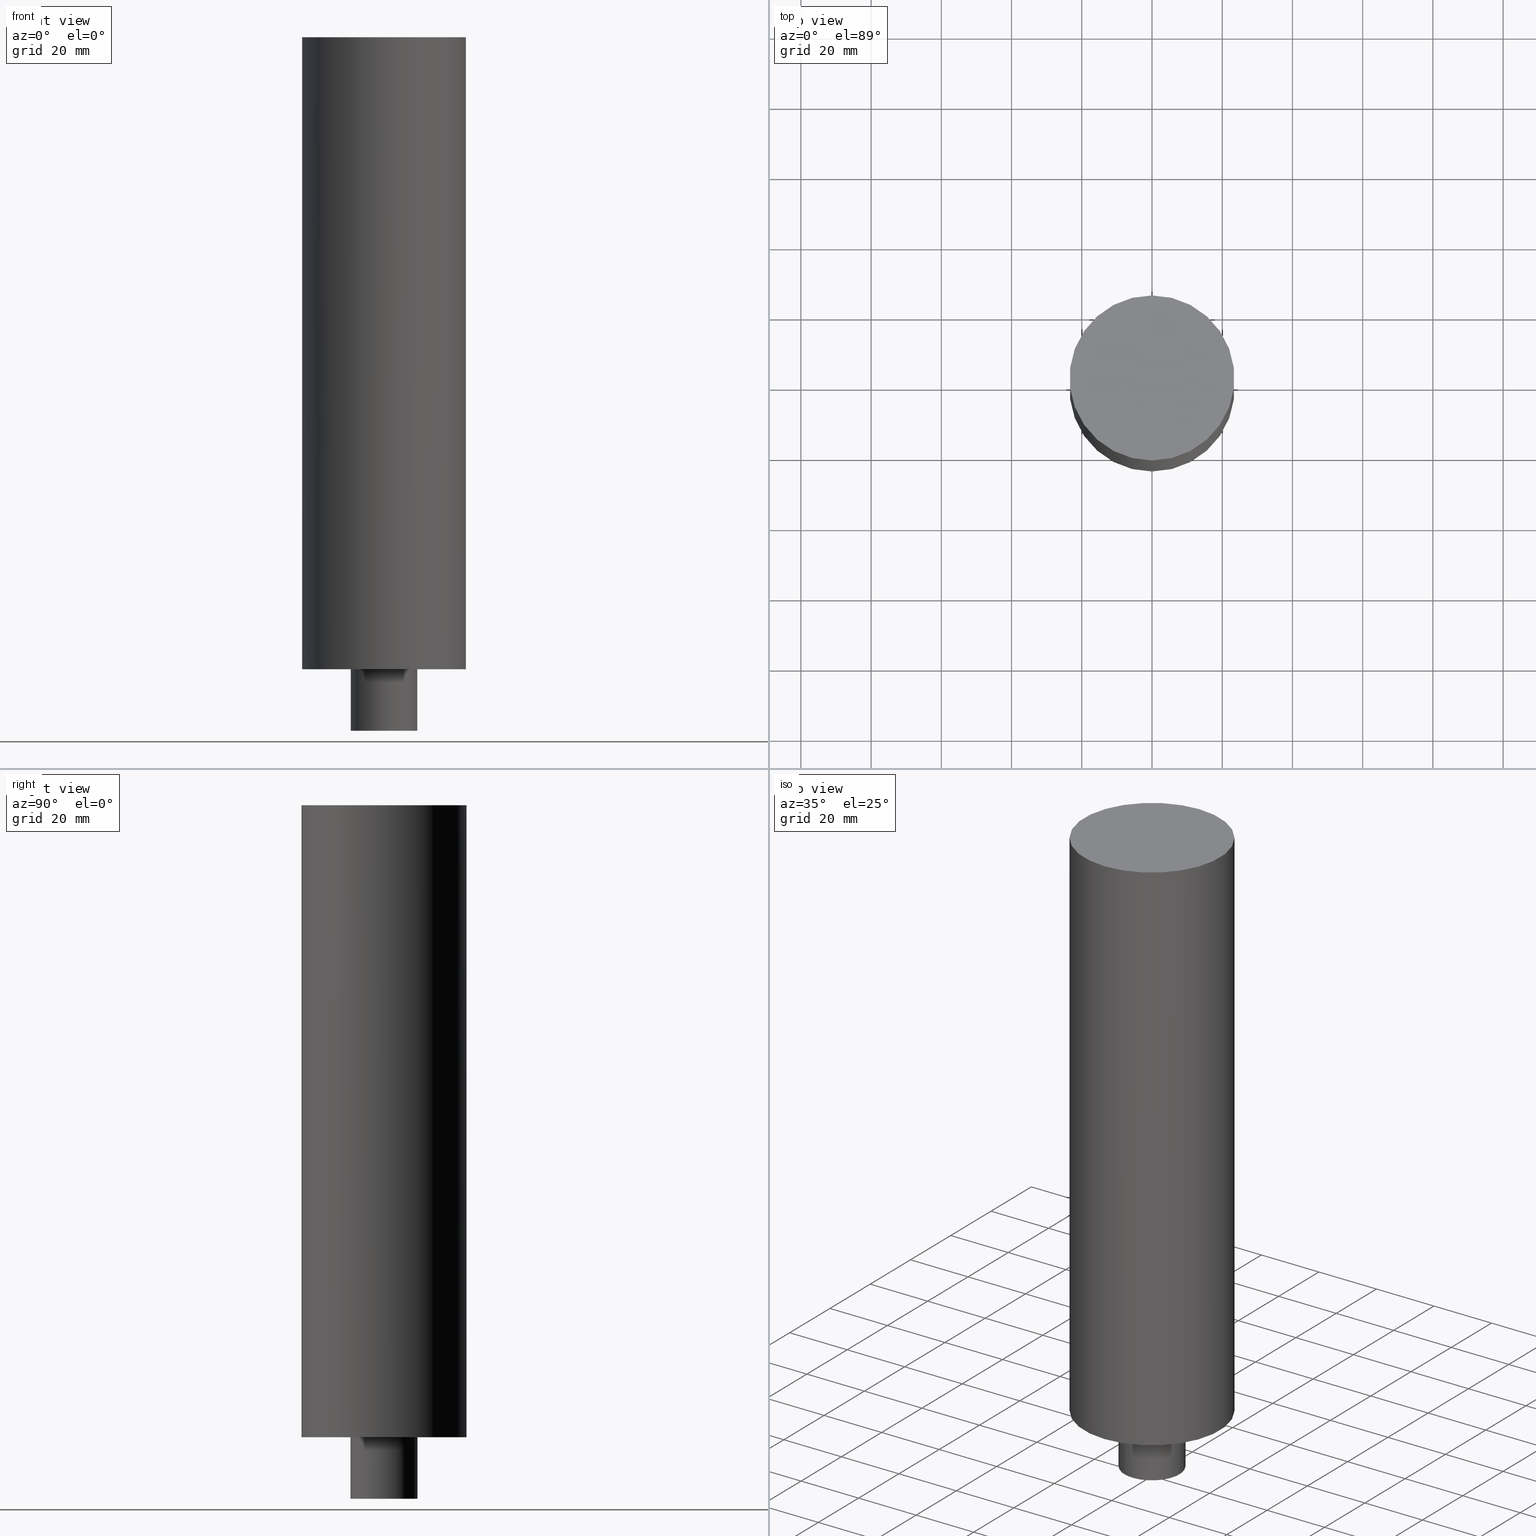
[diagram: canonical four-view strip — front | top / right | iso, engineering-drawing reading convention]
A machine part, canonical four-view strip (front | top / right | iso — engineering-drawing reading convention). The complete STEP part file that produces these views, byte-faithful:
ISO-10303-21;
HEADER;
FILE_DESCRIPTION((''),'1');
FILE_NAME('V:/90_\X2\53D65F9730C730FC30BF\X0\/00_\X2\6DE18DEF30C730FC30BF\X0\/ALL/BCV-BKUS\X2\FF76FF80FF9BFF78FF9E752852A05DE556F3\X0\201801/BCV50-SDF/SDF36-SMC.750DP-47-180.stp','2018-02-01T01:16:16',(''),(''),'Spatial Interop R21 SP3','Kubotek KeyCreator 2011 V10.0.2 (22737)',' ');
FILE_SCHEMA(('automotive_design'));
ENDSEC;
DATA;
#1=MECHANICAL_DESIGN_GEOMETRIC_PRESENTATION_REPRESENTATION(' ',(#10,#11,#12,#13,#14,#15,#16,#17,#18,#19),#6);
#2=PRODUCT_DEFINITION_CONTEXT('',#20,'design');
#3=APPLICATION_PROTOCOL_DEFINITION('INTERNATIONAL STANDARD','automotive_design',1994,#20);
#4=PRODUCT_CATEGORY_RELATIONSHIP('NONE','NONE',#21,#22);
#5=SHAPE_DEFINITION_REPRESENTATION(#23,#24);
#6= (GEOMETRIC_REPRESENTATION_CONTEXT(3)GLOBAL_UNCERTAINTY_ASSIGNED_CONTEXT((#27))GLOBAL_UNIT_ASSIGNED_CONTEXT((#29,#30,#31))REPRESENTATION_CONTEXT('NONE','WORKSPACE'));
#10=STYLED_ITEM('',(#33),#34);
#11=STYLED_ITEM('',(#35),#36);
#12=STYLED_ITEM('',(#37,#38),#39);
#13=STYLED_ITEM('',(#40),#41);
#14=STYLED_ITEM('',(#42,#43),#44);
#15=STYLED_ITEM('',(#45),#46);
#16=STYLED_ITEM('',(#47,#48),#49);
#17=STYLED_ITEM('',(#50,#51),#52);
#18=STYLED_ITEM('',(#53,#54),#55);
#19=STYLED_ITEM('',(#56,#57),#58);
#20=APPLICATION_CONTEXT(' ');
#21=PRODUCT_CATEGORY('part','NONE');
#22=PRODUCT_RELATED_PRODUCT_CATEGORY('detail',' ',(#59));
#23=PRODUCT_DEFINITION_SHAPE('NONE','NONE',#60);
#24=ADVANCED_BREP_SHAPE_REPRESENTATION('Unnamed[1]',(#52,#61),#6);
#27=UNCERTAINTY_MEASURE_WITH_UNIT(LENGTH_MEASURE(1.0E-006),#29,'','');
#29= (CONVERSION_BASED_UNIT('MILLIMETRE',#64)LENGTH_UNIT()NAMED_UNIT(#67));
#30= (NAMED_UNIT(#69)PLANE_ANGLE_UNIT()SI_UNIT($,.RADIAN.));
#31= (NAMED_UNIT(#69)SOLID_ANGLE_UNIT()SI_UNIT($,.STERADIAN.));
#33=PRESENTATION_STYLE_ASSIGNMENT((#75));
#34=EDGE_CURVE('Unnamed[1]',#76,#76,#77,.T.);
#35=PRESENTATION_STYLE_ASSIGNMENT((#78));
#36=EDGE_CURVE('Unnamed[1]',#79,#79,#80,.T.);
#37=PRESENTATION_STYLE_ASSIGNMENT((#81));
#38=PRESENTATION_STYLE_ASSIGNMENT((#82));
#39=ADVANCED_FACE('Unnamed[1]',(#83,#84),#85,.T.);
#40=PRESENTATION_STYLE_ASSIGNMENT((#86));
#41=EDGE_CURVE('Unnamed[1]',#87,#87,#88,.T.);
#42=PRESENTATION_STYLE_ASSIGNMENT((#89));
#43=PRESENTATION_STYLE_ASSIGNMENT((#90));
#44=ADVANCED_FACE('Unnamed[1]',(#91),#92,.T.);
#45=PRESENTATION_STYLE_ASSIGNMENT((#93));
#46=EDGE_CURVE('Unnamed[1]',#94,#94,#95,.T.);
#47=PRESENTATION_STYLE_ASSIGNMENT((#96));
#48=PRESENTATION_STYLE_ASSIGNMENT((#97));
#49=ADVANCED_FACE('Unnamed[1]',(#98,#99),#100,.T.);
#50=PRESENTATION_STYLE_ASSIGNMENT((#101));
#51=PRESENTATION_STYLE_ASSIGNMENT((#102));
#52=MANIFOLD_SOLID_BREP('Unnamed[1]',#103);
#53=PRESENTATION_STYLE_ASSIGNMENT((#104));
#54=PRESENTATION_STYLE_ASSIGNMENT((#105));
#55=ADVANCED_FACE('Unnamed[1]',(#106,#107),#108,.T.);
#56=PRESENTATION_STYLE_ASSIGNMENT((#109));
#57=PRESENTATION_STYLE_ASSIGNMENT((#110));
#58=ADVANCED_FACE('Unnamed[1]',(#111),#112,.T.);
#59=PRODUCT('Unnamed[1]','Unnamed[1]','PART-Unnamed[1]-DESC',(#113));
#60=PRODUCT_DEFINITION('NONE','NONE',#114,#2);
#61=AXIS2_PLACEMENT_3D('',#115,#116,#117);
#64=LENGTH_MEASURE_WITH_UNIT(LENGTH_MEASURE(1.0),#118);
#67=DIMENSIONAL_EXPONENTS(1.0,0.0,0.0,0.0,0.0,0.0,0.0);
#69=DIMENSIONAL_EXPONENTS(0.0,0.0,0.0,0.0,0.0,0.0,0.0);
#75=CURVE_STYLE('',#119,POSITIVE_LENGTH_MEASURE(1000.0),#120);
#76=VERTEX_POINT('',#121);
#77=CIRCLE('',#122,9.525);
#78=CURVE_STYLE('',#123,POSITIVE_LENGTH_MEASURE(1000.0),#124);
#79=VERTEX_POINT('',#125);
#80=CIRCLE('',#126,23.5);
#81=SURFACE_STYLE_USAGE(.BOTH.,#127);
#82=CURVE_STYLE('',#128,POSITIVE_LENGTH_MEASURE(1000.0),#129);
#83=FACE_BOUND('',#130,.T.);
#84=FACE_BOUND('',#131,.T.);
#85=CYLINDRICAL_SURFACE('',#132,23.5);
#86=CURVE_STYLE('',#133,POSITIVE_LENGTH_MEASURE(1000.0),#134);
#87=VERTEX_POINT('',#135);
#88=CIRCLE('',#136,9.525);
#89=SURFACE_STYLE_USAGE(.BOTH.,#137);
#90=CURVE_STYLE('',#138,POSITIVE_LENGTH_MEASURE(1000.0),#139);
#91=FACE_OUTER_BOUND('',#140,.T.);
#92=PLANE('',#141);
#93=CURVE_STYLE('',#142,POSITIVE_LENGTH_MEASURE(1000.0),#143);
#94=VERTEX_POINT('',#144);
#95=CIRCLE('',#145,23.5);
#96=SURFACE_STYLE_USAGE(.BOTH.,#146);
#97=CURVE_STYLE('',#147,POSITIVE_LENGTH_MEASURE(1000.0),#148);
#98=FACE_BOUND('',#149,.T.);
#99=FACE_BOUND('',#150,.T.);
#100=CYLINDRICAL_SURFACE('',#151,9.525);
#101=SURFACE_STYLE_USAGE(.BOTH.,#152);
#102=CURVE_STYLE('',#153,POSITIVE_LENGTH_MEASURE(1000.0),#154);
#103=CLOSED_SHELL('',(#58,#49,#55,#39,#44));
#104=SURFACE_STYLE_USAGE(.BOTH.,#155);
#105=CURVE_STYLE('',#156,POSITIVE_LENGTH_MEASURE(1000.0),#157);
#106=FACE_OUTER_BOUND('',#158,.T.);
#107=FACE_BOUND('',#159,.T.);
#108=PLANE('',#160);
#109=SURFACE_STYLE_USAGE(.BOTH.,#161);
#110=CURVE_STYLE('',#162,POSITIVE_LENGTH_MEASURE(1000.0),#163);
#111=FACE_OUTER_BOUND('',#164,.T.);
#112=PLANE('',#165);
#113=PRODUCT_CONTEXT('',#20,'mechanical');
#114=PRODUCT_DEFINITION_FORMATION_WITH_SPECIFIED_SOURCE(' ','NONE',#59,.NOT_KNOWN.);
#115=CARTESIAN_POINT('',(0.0,0.0,0.0));
#116=DIRECTION('',(0.0,0.0,1.0));
#117=DIRECTION('',(1.0,0.0,0.0));
#118= (NAMED_UNIT(#67)LENGTH_UNIT()SI_UNIT(.MILLI.,.METRE.));
#119=DRAUGHTING_PRE_DEFINED_CURVE_FONT('continuous');
#120=COLOUR_RGB('',0.0,1.0,0.0);
#121=CARTESIAN_POINT('',(1.20933871415801E-014,9.52500000000002,-197.5));
#122=AXIS2_PLACEMENT_3D('',#167,#168,#169);
#123=DRAUGHTING_PRE_DEFINED_CURVE_FONT('continuous');
#124=COLOUR_RGB('',0.0,1.0,0.0);
#125=CARTESIAN_POINT('',(1.10218211923262E-014,23.5,-180.0));
#126=AXIS2_PLACEMENT_3D('',#170,#171,#172);
#127=SURFACE_SIDE_STYLE('',(#173));
#128=DRAUGHTING_PRE_DEFINED_CURVE_FONT('continuous');
#129=COLOUR_RGB('',0.0,1.0,0.0);
#130=EDGE_LOOP('',(#174));
#131=EDGE_LOOP('',(#175));
#132=AXIS2_PLACEMENT_3D('',#176,#177,#178);
#133=DRAUGHTING_PRE_DEFINED_CURVE_FONT('continuous');
#134=COLOUR_RGB('',0.0,1.0,0.0);
#135=CARTESIAN_POINT('',(1.10218211923262E-014,9.52500000000002,-180.0));
#136=AXIS2_PLACEMENT_3D('',#179,#180,#181);
#137=SURFACE_SIDE_STYLE('',(#182));
#138=DRAUGHTING_PRE_DEFINED_CURVE_FONT('continuous');
#139=COLOUR_RGB('',0.0,1.0,0.0);
#140=EDGE_LOOP('',(#183));
#141=AXIS2_PLACEMENT_3D('',#184,#185,#186);
#142=DRAUGHTING_PRE_DEFINED_CURVE_FONT('continuous');
#143=COLOUR_RGB('',0.0,1.0,0.0);
#144=CARTESIAN_POINT('',(-2.8965986363584E-031,23.5,2.87791997799628E-015));
#145=AXIS2_PLACEMENT_3D('',#187,#188,#189);
#146=SURFACE_SIDE_STYLE('',(#190));
#147=DRAUGHTING_PRE_DEFINED_CURVE_FONT('continuous');
#148=COLOUR_RGB('',0.0,1.0,0.0);
#149=EDGE_LOOP('',(#191));
#150=EDGE_LOOP('',(#192));
#151=AXIS2_PLACEMENT_3D('',#193,#194,#195);
#152=SURFACE_SIDE_STYLE('',(#196));
#153=DRAUGHTING_PRE_DEFINED_CURVE_FONT('continuous');
#154=COLOUR_RGB('',0.0,1.0,0.0);
#155=SURFACE_SIDE_STYLE('',(#197));
#156=DRAUGHTING_PRE_DEFINED_CURVE_FONT('continuous');
#157=COLOUR_RGB('',0.0,1.0,0.0);
#158=EDGE_LOOP('',(#198));
#159=EDGE_LOOP('',(#199));
#160=AXIS2_PLACEMENT_3D('',#200,#201,#202);
#161=SURFACE_SIDE_STYLE('',(#203));
#162=DRAUGHTING_PRE_DEFINED_CURVE_FONT('continuous');
#163=COLOUR_RGB('',0.0,1.0,0.0);
#164=EDGE_LOOP('',(#204));
#165=AXIS2_PLACEMENT_3D('',#205,#206,#207);
#167=CARTESIAN_POINT('',(1.20933871415801E-014,2.41867742831602E-014,-197.5));
#168=DIRECTION('',(-6.12323399573677E-017,-1.22464679914735E-016,1.0));
#169=DIRECTION('',(-1.23259516440783E-032,1.0,1.22464679914735E-016));
#170=CARTESIAN_POINT('',(1.10218211923262E-014,2.20436423846524E-014,-180.0));
#171=DIRECTION('',(-6.12323399573677E-017,-1.22464679914735E-016,1.0));
#172=DIRECTION('',(-1.23259516440783E-032,1.0,1.22464679914735E-016));
#173=SURFACE_STYLE_FILL_AREA(#208);
#174=ORIENTED_EDGE('',*,*,#46,.F.);
#175=ORIENTED_EDGE('',*,*,#36,.T.);
#176=CARTESIAN_POINT('',(5.51091059616309E-015,1.10218211923262E-014,-90.0));
#177=DIRECTION('',(-6.12323399573677E-017,-1.22464679914735E-016,1.0));
#178=DIRECTION('',(-1.23259516440783E-032,1.0,1.22464679914735E-016));
#179=CARTESIAN_POINT('',(1.10218211923262E-014,2.20436423846524E-014,-180.0));
#180=DIRECTION('',(-6.12323399573677E-017,-1.22464679914735E-016,1.0));
#181=DIRECTION('',(-1.23259516440783E-032,1.0,1.22464679914735E-016));
#182=SURFACE_STYLE_FILL_AREA(#209);
#183=ORIENTED_EDGE('',*,*,#46,.T.);
#184=CARTESIAN_POINT('',(-1.4482993181792E-031,11.75,1.43895998899814E-015));
#185=DIRECTION('',(-6.12323399573677E-017,-1.22464679914735E-016,1.0));
#186=DIRECTION('',(-1.23259516440783E-032,1.0,1.22464679914735E-016));
#187=CARTESIAN_POINT('',(0.0,0.0,0.0));
#188=DIRECTION('',(-6.12323399573677E-017,-1.22464679914735E-016,1.0));
#189=DIRECTION('',(-1.23259516440783E-032,1.0,1.22464679914735E-016));
#190=SURFACE_STYLE_FILL_AREA(#210);
#191=ORIENTED_EDGE('',*,*,#41,.F.);
#192=ORIENTED_EDGE('',*,*,#34,.T.);
#193=CARTESIAN_POINT('',(1.15576041669531E-014,2.31152083339063E-014,-188.75));
#194=DIRECTION('',(-6.12323399573677E-017,-1.22464679914735E-016,1.0));
#195=DIRECTION('',(-1.23259516440783E-032,1.0,1.22464679914735E-016));
#196=SURFACE_STYLE_FILL_AREA(#211);
#197=SURFACE_STYLE_FILL_AREA(#212);
#198=ORIENTED_EDGE('',*,*,#36,.F.);
#199=ORIENTED_EDGE('',*,*,#41,.T.);
#200=CARTESIAN_POINT('',(1.10218211923262E-014,16.5125,-180.0));
#201=DIRECTION('',(6.12323399573677E-017,1.22464679914735E-016,-1.0));
#202=DIRECTION('',(1.23259516440783E-032,-1.0,-1.22464679914735E-016));
#203=SURFACE_STYLE_FILL_AREA(#213);
#204=ORIENTED_EDGE('',*,*,#34,.F.);
#205=CARTESIAN_POINT('',(1.20933871415801E-014,4.76250000000002,-197.5));
#206=DIRECTION('',(6.12323399573677E-017,1.22464679914735E-016,-1.0));
#207=DIRECTION('',(1.23259516440783E-032,-1.0,-1.22464679914735E-016));
#208=FILL_AREA_STYLE('',(#214));
#209=FILL_AREA_STYLE('',(#215));
#210=FILL_AREA_STYLE('',(#216));
#211=FILL_AREA_STYLE('',(#217));
#212=FILL_AREA_STYLE('',(#218));
#213=FILL_AREA_STYLE('',(#219));
#214=FILL_AREA_STYLE_COLOUR('',#220);
#215=FILL_AREA_STYLE_COLOUR('',#221);
#216=FILL_AREA_STYLE_COLOUR('',#222);
#217=FILL_AREA_STYLE_COLOUR('',#223);
#218=FILL_AREA_STYLE_COLOUR('',#224);
#219=FILL_AREA_STYLE_COLOUR('',#225);
#220=COLOUR_RGB('',0.0,1.0,0.0);
#221=COLOUR_RGB('',0.0,1.0,0.0);
#222=COLOUR_RGB('',0.0,1.0,0.0);
#223=COLOUR_RGB('',0.0,1.0,0.0);
#224=COLOUR_RGB('',0.0,1.0,0.0);
#225=COLOUR_RGB('',0.0,1.0,0.0);
ENDSEC;
END-ISO-10303-21;
